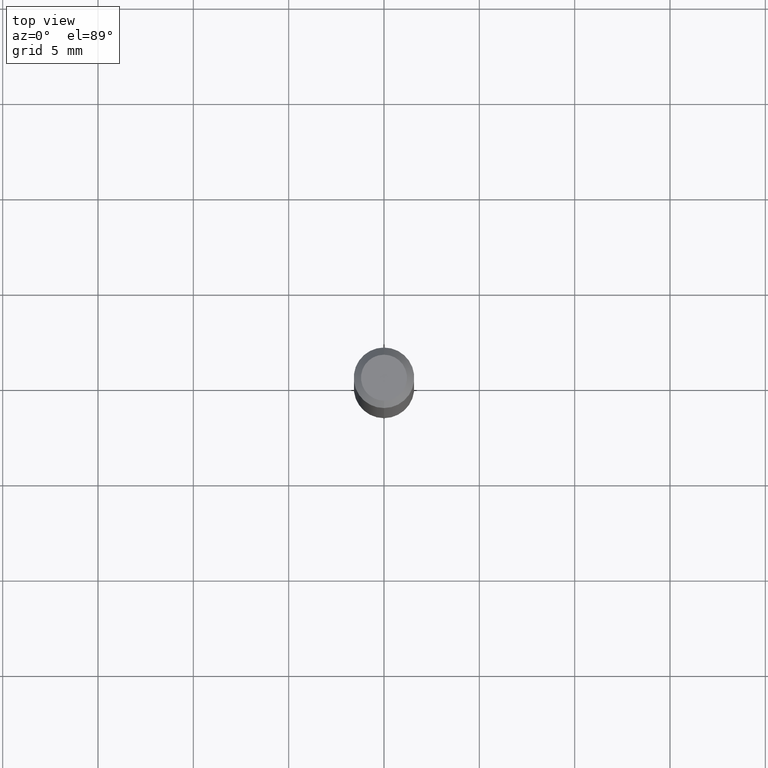
[diagram: clean part render]
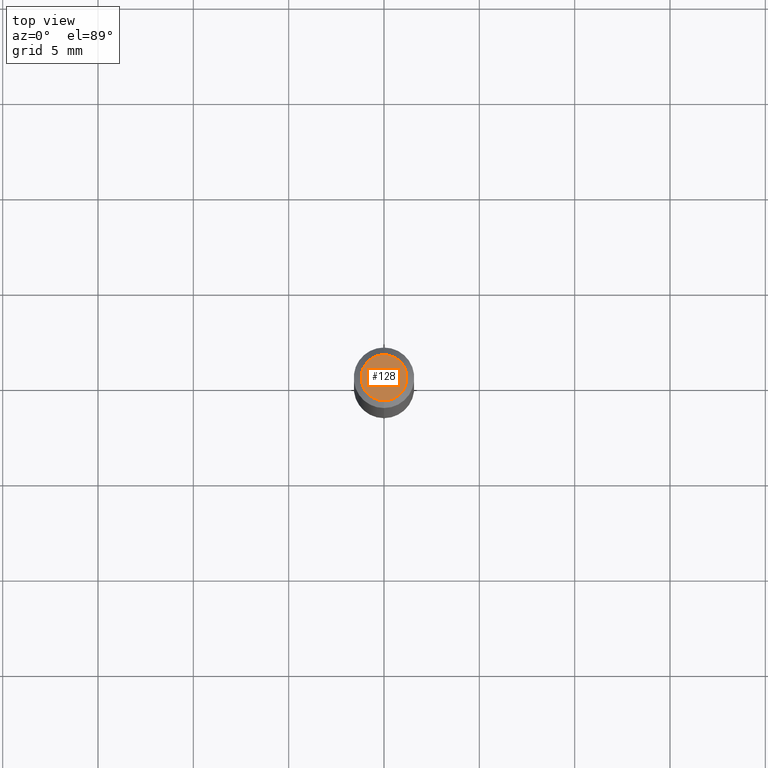
[diagram: same view with one face highlighted and labeled with its STEP entity id]
A machine part, top view. The second image highlights one B-rep face of the part: STEP entity #128.
In plain terms, the highlighted planar face has unit normal (0, -0, -1).
Its self-contained STEP definition (entity closure, byte-faithful):
#24 = FACE_OUTER_BOUND ( 'NONE', #456, .T. ) ;
#27 = AXIS2_PLACEMENT_3D ( 'NONE', #490, #60, #386 ) ;
#60 = DIRECTION ( 'NONE',  ( -2.445470934524949177E-29, 3.491478290939396470E-15, 1.000000000000000000 ) ) ;
#63 = CARTESIAN_POINT ( 'NONE',  ( 2.166800807652631744E-46, -3.093611898592751008E-32, -8.860464367259179320E-18 ) ) ;
#68 = EDGE_CURVE ( 'NONE', #280, #301, #395, .T. ) ;
#77 = CARTESIAN_POINT ( 'NONE',  ( 3.840629472727447874E-16, 0.04749999999999999362, -1.747056831868805136E-16 ) ) ;
#105 = DIRECTION ( 'NONE',  ( 6.982962677686265922E-15, 1.000000000000000000, -3.491478290939396076E-15 ) ) ;
#121 = EDGE_CURVE ( 'NONE', #301, #280, #472, .T. ) ;
#128 = ADVANCED_FACE ( 'NONE', ( #24 ), #495, .F. ) ;
#143 = AXIS2_PLACEMENT_3D ( 'NONE', #176, #464, #105 ) ;
#146 = DIRECTION ( 'NONE',  ( -6.982962677686266711E-15, -1.000000000000000000, 3.491478290939396470E-15 ) ) ;
#163 = AXIS2_PLACEMENT_3D ( 'NONE', #63, #335, #146 ) ;
#176 = CARTESIAN_POINT ( 'NONE',  ( 3.316907271900976096E-16, 0.04749999999999999362, -1.702754510032508993E-16 ) ) ;
#223 = ORIENTED_EDGE ( 'NONE', *, *, #68, .T. ) ;
#280 = VERTEX_POINT ( 'NONE', #346 ) ;
#301 = VERTEX_POINT ( 'NONE', #77 ) ;
#335 = DIRECTION ( 'NONE',  ( -2.445470934524949177E-29, 3.491478290939396470E-15, 1.000000000000000000 ) ) ;
#346 = CARTESIAN_POINT ( 'NONE',  ( -3.773273898774340269E-16, -0.04749999999999999362, 1.569847544523621303E-16 ) ) ;
#386 = DIRECTION ( 'NONE',  ( -6.982962677686266711E-15, -1.000000000000000000, 3.491478290939396470E-15 ) ) ;
#395 = CIRCLE ( 'NONE', #163, 0.04749999999999999362 ) ;
#447 = ORIENTED_EDGE ( 'NONE', *, *, #121, .T. ) ;
#456 = EDGE_LOOP ( 'NONE', ( #447, #223 ) ) ;
#464 = DIRECTION ( 'NONE',  ( 2.445470934524949177E-29, -3.491478290939396076E-15, -1.000000000000000000 ) ) ;
#472 = CIRCLE ( 'NONE', #27, 0.04749999999999999362 ) ;
#490 = CARTESIAN_POINT ( 'NONE',  ( 2.166800807652631744E-46, -3.093611898592751008E-32, -8.860464367259179320E-18 ) ) ;
#495 = PLANE ( 'NONE',  #143 ) ;